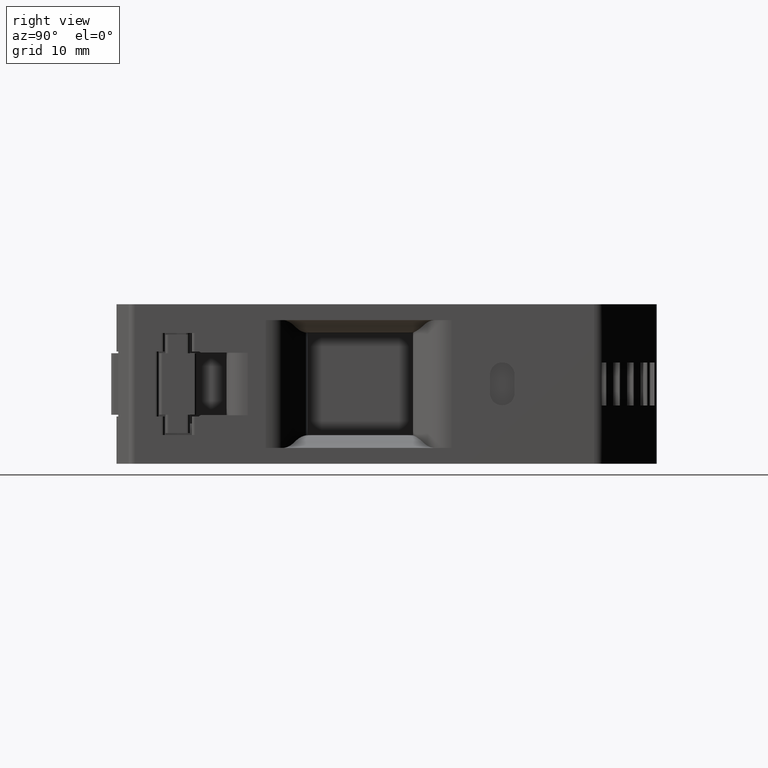
[diagram: clean part render]
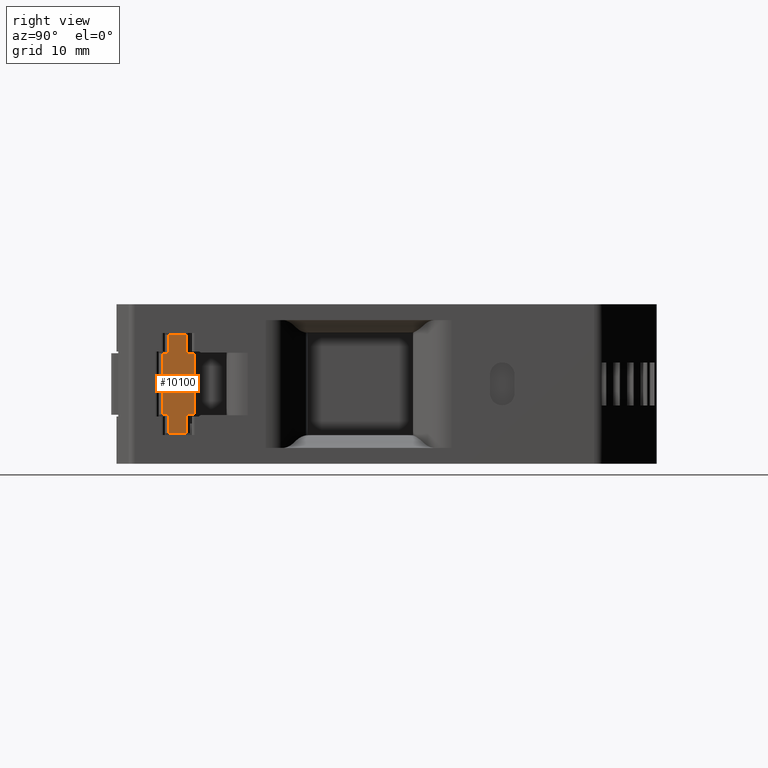
[diagram: same view with one face highlighted and labeled with its STEP entity id]
A machine part, right view. The second image highlights one B-rep face of the part: STEP entity #10100.
In plain terms, the highlighted planar face has unit normal (-1, -0, 0).
Its self-contained STEP definition (entity closure, byte-faithful):
#3458 = CARTESIAN_POINT ( 'NONE',  ( 42.63495096797076700, -48.79870487461546000, -16.25450991172171900 ) ) ;
#5769 = EDGE_LOOP ( 'NONE', ( #10696, #10782, #10691, #10667, #10729, #10644, #10650, #10734, #10663, #10700, #10821, #10754 ) ) ;
#6901 = VECTOR ( 'NONE', #16897, 1000.000000000000000 ) ;
#6910 = VECTOR ( 'NONE', #17042, 1000.000000000000000 ) ;
#6915 = VECTOR ( 'NONE', #17027, 1000.000000000000000 ) ;
#6923 = VECTOR ( 'NONE', #17058, 1000.000000000000000 ) ;
#6929 = VECTOR ( 'NONE', #17219, 1000.000000000000000 ) ;
#6931 = VECTOR ( 'NONE', #17094, 1000.000000000000000 ) ;
#6941 = VECTOR ( 'NONE', #17215, 1000.000000000000000 ) ;
#6953 = VECTOR ( 'NONE', #17295, 1000.000000000000000 ) ;
#6954 = VECTOR ( 'NONE', #17299, 1000.000000000000000 ) ;
#9018 = FACE_OUTER_BOUND ( 'NONE', #5769, .T. ) ;
#9023 = PLANE ( 'NONE',  #9950 ) ;
#9026 = DIRECTION ( 'NONE',  ( -1.000000000000000000, -8.540177112501238800E-014, 0.0000000000000000000 ) ) ;
#9030 = CARTESIAN_POINT ( 'NONE',  ( 42.63495096797126400, -53.99870487461544100, -4.254509911721708400 ) ) ;
#9053 = DIRECTION ( 'NONE',  ( 8.540177112501238800E-014, -1.000000000000000000, 0.0000000000000000000 ) ) ;
#9950 = AXIS2_PLACEMENT_3D ( 'NONE', #9030, #9026, #9053 ) ;
#10100 = ADVANCED_FACE ( 'NONE', ( #9018 ), #9023, .F. ) ;
#10644 = ORIENTED_EDGE ( 'NONE', *, *, #12073, .T. ) ;
#10650 = ORIENTED_EDGE ( 'NONE', *, *, #12151, .T. ) ;
#10663 = ORIENTED_EDGE ( 'NONE', *, *, #12076, .F. ) ;
#10667 = ORIENTED_EDGE ( 'NONE', *, *, #12055, .F. ) ;
#10691 = ORIENTED_EDGE ( 'NONE', *, *, #11908, .T. ) ;
#10696 = ORIENTED_EDGE ( 'NONE', *, *, #11937, .T. ) ;
#10700 = ORIENTED_EDGE ( 'NONE', *, *, #12034, .T. ) ;
#10729 = ORIENTED_EDGE ( 'NONE', *, *, #12122, .T. ) ;
#10734 = ORIENTED_EDGE ( 'NONE', *, *, #12140, .T. ) ;
#10754 = ORIENTED_EDGE ( 'NONE', *, *, #19959, .F. ) ;
#10782 = ORIENTED_EDGE ( 'NONE', *, *, #12154, .F. ) ;
#10821 = ORIENTED_EDGE ( 'NONE', *, *, #12094, .T. ) ;
#11699 = VERTEX_POINT ( 'NONE', #19425 ) ;
#11708 = VERTEX_POINT ( 'NONE', #19415 ) ;
#11908 = EDGE_CURVE ( 'NONE', #20546, #20577, #19029, .T. ) ;
#11937 = EDGE_CURVE ( 'NONE', #11708, #20570, #19055, .T. ) ;
#12034 = EDGE_CURVE ( 'NONE', #20580, #20538, #16890, .T. ) ;
#12055 = EDGE_CURVE ( 'NONE', #20581, #20577, #17062, .T. ) ;
#12073 = EDGE_CURVE ( 'NONE', #20539, #20572, #17001, .T. ) ;
#12076 = EDGE_CURVE ( 'NONE', #20580, #20582, #17053, .T. ) ;
#12094 = EDGE_CURVE ( 'NONE', #20538, #11699, #17160, .T. ) ;
#12122 = EDGE_CURVE ( 'NONE', #20581, #20539, #17283, .T. ) ;
#12140 = EDGE_CURVE ( 'NONE', #20576, #20582, #17186, .T. ) ;
#12151 = EDGE_CURVE ( 'NONE', #20572, #20576, #17358, .T. ) ;
#12154 = EDGE_CURVE ( 'NONE', #20546, #20570, #17306, .T. ) ;
#16550 = VECTOR ( 'NONE', #19065, 1000.000000000000000 ) ;
#16655 = VECTOR ( 'NONE', #19066, 1000.000000000000000 ) ;
#16890 = LINE ( 'NONE', #16901, #6901 ) ;
#16897 = DIRECTION ( 'NONE',  ( 8.540177112501238800E-014, -1.000000000000000000, 0.0000000000000000000 ) ) ;
#16901 = CARTESIAN_POINT ( 'NONE',  ( 42.63495096797126400, -53.99870487461544100, -6.254509911721696900 ) ) ;
#16974 = CARTESIAN_POINT ( 'NONE',  ( 42.63495096797076700, -48.79870487461546000, -4.254509911721708400 ) ) ;
#16977 = CARTESIAN_POINT ( 'NONE',  ( 42.63495096797126400, -53.99870487461544100, -16.25450991172171900 ) ) ;
#17001 = LINE ( 'NONE', #17028, #6915 ) ;
#17027 = DIRECTION ( 'NONE',  ( -8.540177112501238800E-014, 1.000000000000000000, 0.0000000000000000000 ) ) ;
#17028 = CARTESIAN_POINT ( 'NONE',  ( 42.63495096797126400, -53.99870487461544100, -19.25450991172173000 ) ) ;
#17042 = DIRECTION ( 'NONE',  ( 8.540177112501238800E-014, -1.000000000000000000, 0.0000000000000000000 ) ) ;
#17053 = LINE ( 'NONE', #16974, #6923 ) ;
#17058 = DIRECTION ( 'NONE',  ( 0.0000000000000000000, 0.0000000000000000000, -1.000000000000000000 ) ) ;
#17062 = LINE ( 'NONE', #16977, #6910 ) ;
#17094 = DIRECTION ( 'NONE',  ( 0.0000000000000000000, 0.0000000000000000000, 1.000000000000000000 ) ) ;
#17113 = CARTESIAN_POINT ( 'NONE',  ( 42.63495096797076700, -49.99870487461591000, -4.254509911721708400 ) ) ;
#17160 = LINE ( 'NONE', #17113, #6931 ) ;
#17186 = LINE ( 'NONE', #17274, #6941 ) ;
#17215 = DIRECTION ( 'NONE',  ( -8.540177112501238800E-014, 1.000000000000000000, 0.0000000000000000000 ) ) ;
#17219 = DIRECTION ( 'NONE',  ( 0.0000000000000000000, 0.0000000000000000000, -1.000000000000000000 ) ) ;
#17248 = CARTESIAN_POINT ( 'NONE',  ( 42.63495096797076700, -52.99870487461544100, -4.254509911721708400 ) ) ;
#17274 = CARTESIAN_POINT ( 'NONE',  ( 42.63495096797126400, -53.99870487461544100, -16.25450991172171900 ) ) ;
#17283 = LINE ( 'NONE', #17248, #6929 ) ;
#17291 = CARTESIAN_POINT ( 'NONE',  ( 42.63495096797076700, -49.99870487461539900, -4.254509911721708400 ) ) ;
#17295 = DIRECTION ( 'NONE',  ( -8.540177112501230000E-014, 1.000000000000000000, 0.0000000000000000000 ) ) ;
#17299 = DIRECTION ( 'NONE',  ( 0.0000000000000000000, 0.0000000000000000000, 1.000000000000000000 ) ) ;
#17306 = LINE ( 'NONE', #17335, #6953 ) ;
#17335 = CARTESIAN_POINT ( 'NONE',  ( 42.63495096797126400, -53.99870487461544100, -6.254509911721696900 ) ) ;
#17358 = LINE ( 'NONE', #17291, #6954 ) ;
#19024 = CARTESIAN_POINT ( 'NONE',  ( 42.63495096797076700, -52.99870487461544100, -16.25450991172171900 ) ) ;
#19027 = CARTESIAN_POINT ( 'NONE',  ( 42.63495096797076700, -53.99870487461544100, -4.254509911721708400 ) ) ;
#19029 = LINE ( 'NONE', #19027, #16655 ) ;
#19055 = LINE ( 'NONE', #19057, #16550 ) ;
#19057 = CARTESIAN_POINT ( 'NONE',  ( 42.63495096797076700, -52.99870487461544100, -4.254509911721708400 ) ) ;
#19065 = DIRECTION ( 'NONE',  ( 0.0000000000000000000, 0.0000000000000000000, -1.000000000000000000 ) ) ;
#19066 = DIRECTION ( 'NONE',  ( 0.0000000000000000000, 0.0000000000000000000, -1.000000000000000000 ) ) ;
#19415 = CARTESIAN_POINT ( 'NONE',  ( 42.63495096797076700, -52.99870487461544100, -3.254509911721707600 ) ) ;
#19425 = CARTESIAN_POINT ( 'NONE',  ( 42.63495096797076700, -49.99870487461591000, -3.254509911721707600 ) ) ;
#19959 = EDGE_CURVE ( 'NONE', #11708, #11699, #23808, .T. ) ;
#20538 = VERTEX_POINT ( 'NONE', #24002 ) ;
#20539 = VERTEX_POINT ( 'NONE', #24026 ) ;
#20546 = VERTEX_POINT ( 'NONE', #24042 ) ;
#20570 = VERTEX_POINT ( 'NONE', #23408 ) ;
#20572 = VERTEX_POINT ( 'NONE', #23471 ) ;
#20576 = VERTEX_POINT ( 'NONE', #23614 ) ;
#20577 = VERTEX_POINT ( 'NONE', #23616 ) ;
#20580 = VERTEX_POINT ( 'NONE', #23730 ) ;
#20581 = VERTEX_POINT ( 'NONE', #19024 ) ;
#20582 = VERTEX_POINT ( 'NONE', #3458 ) ;
#21632 = VECTOR ( 'NONE', #23850, 1000.000000000000000 ) ;
#23408 = CARTESIAN_POINT ( 'NONE',  ( 42.63495096797076700, -52.99870487461544100, -6.254509911721696900 ) ) ;
#23471 = CARTESIAN_POINT ( 'NONE',  ( 42.63495096797076700, -49.99870487461539900, -19.25450991172173000 ) ) ;
#23614 = CARTESIAN_POINT ( 'NONE',  ( 42.63495096797076700, -49.99870487461539900, -16.25450991172171900 ) ) ;
#23616 = CARTESIAN_POINT ( 'NONE',  ( 42.63495096797126400, -53.99870487461544100, -16.25450991172171900 ) ) ;
#23730 = CARTESIAN_POINT ( 'NONE',  ( 42.63495096797076700, -48.79870487461546000, -6.254509911721696900 ) ) ;
#23796 = CARTESIAN_POINT ( 'NONE',  ( 42.63495096797126400, -53.99870487461544100, -3.254509911721707600 ) ) ;
#23808 = LINE ( 'NONE', #23796, #21632 ) ;
#23850 = DIRECTION ( 'NONE',  ( -8.540177112501238800E-014, 1.000000000000000000, 0.0000000000000000000 ) ) ;
#24002 = CARTESIAN_POINT ( 'NONE',  ( 42.63495096797076700, -49.99870487461591000, -6.254509911721696900 ) ) ;
#24026 = CARTESIAN_POINT ( 'NONE',  ( 42.63495096797076700, -52.99870487461544100, -19.25450991172173000 ) ) ;
#24042 = CARTESIAN_POINT ( 'NONE',  ( 42.63495096797126400, -53.99870487461544100, -6.254509911721696900 ) ) ;